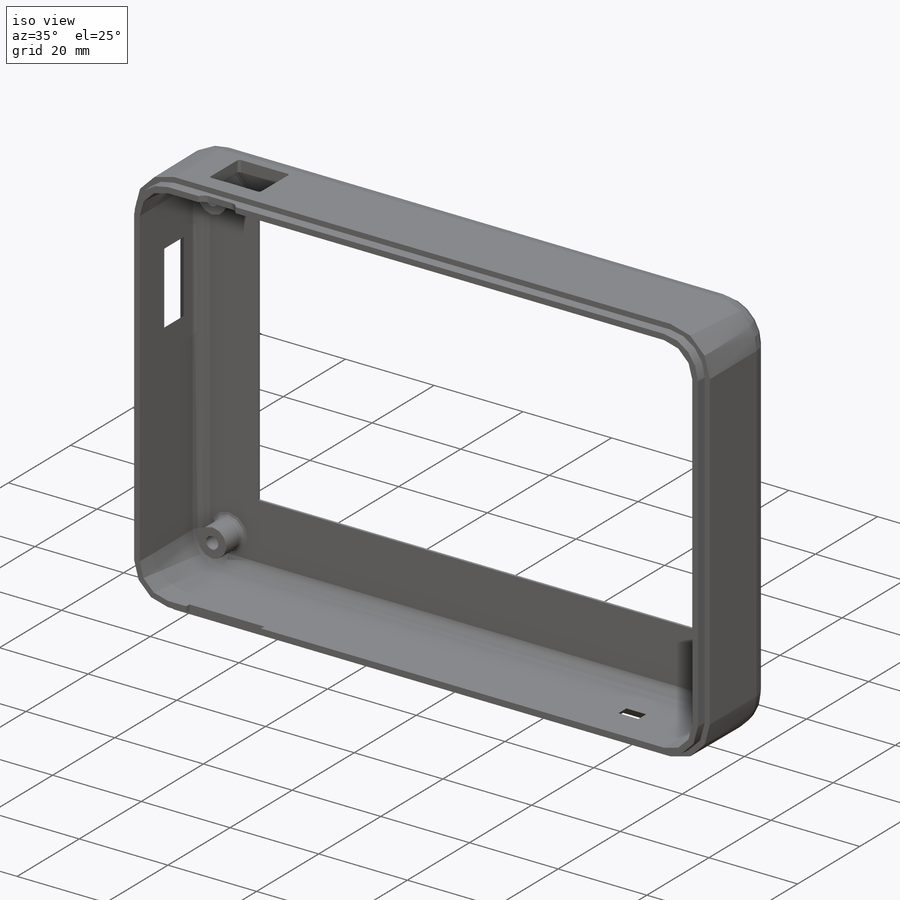
[diagram: iso view]
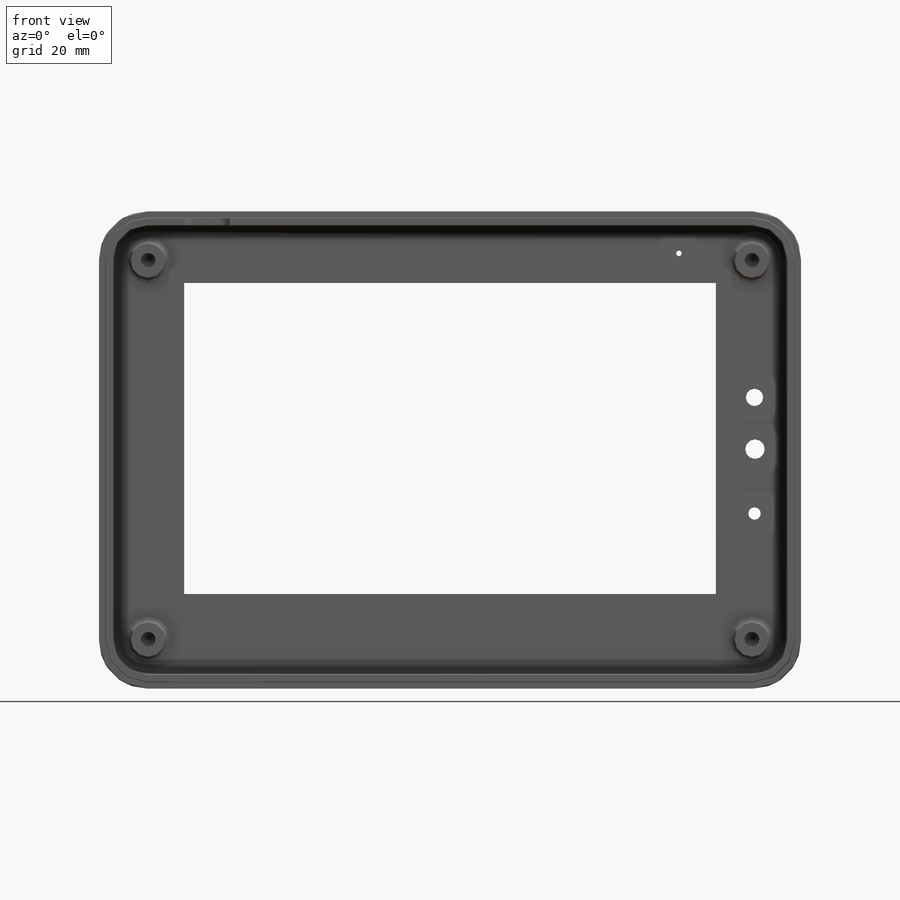
[diagram: front view]
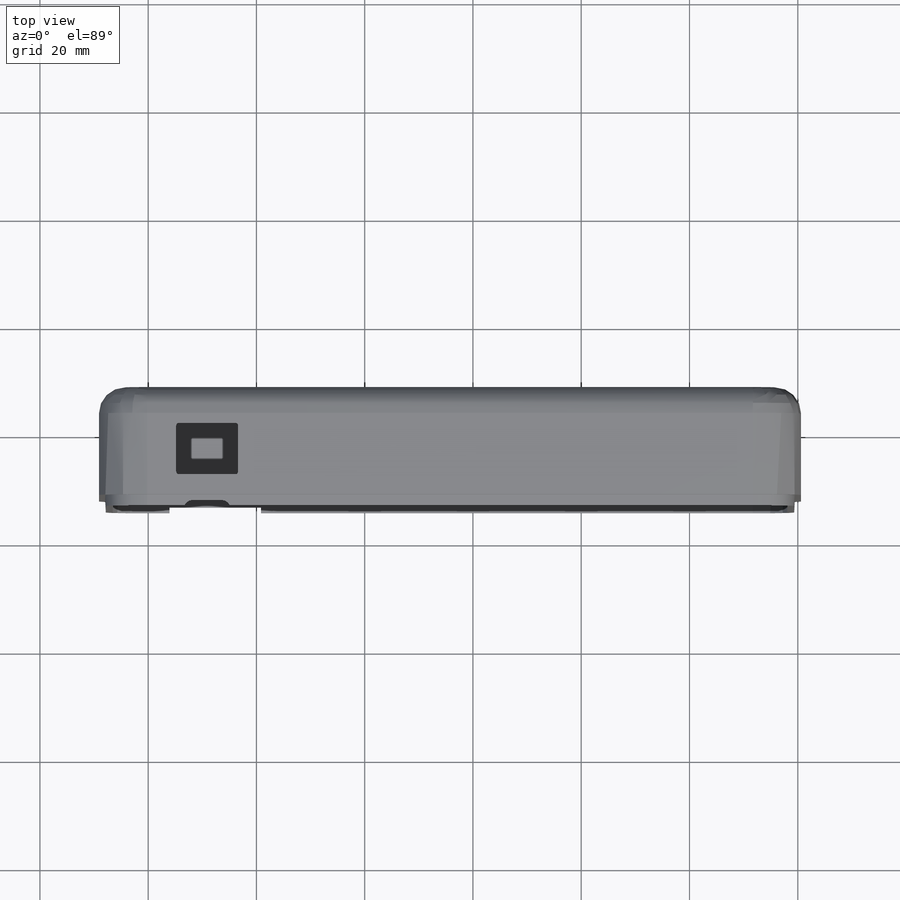
[diagram: top view]
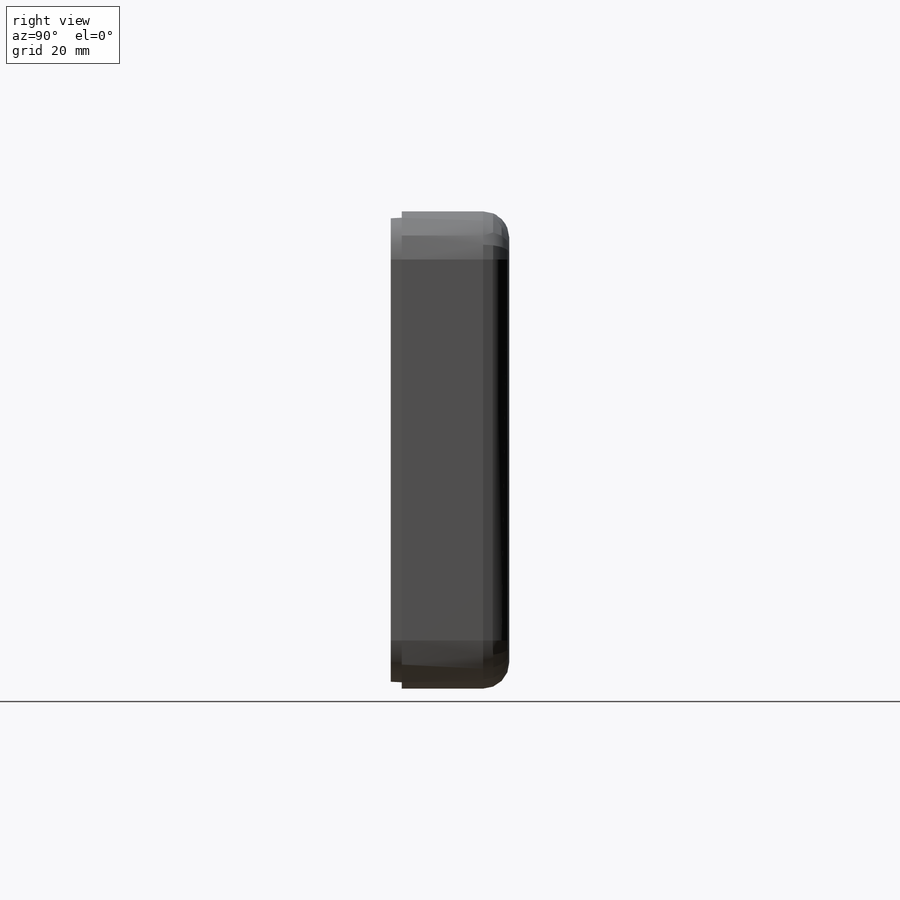
[diagram: right view]
SOLIDWORKS PART (.sldprt)
format: sldprt  version: not decoded by parser v0  size: 4,057,600 bytes
history: native  units: mm
features: sketch x35, extrude x21, fillet x11, cut_extrude x10, chamfer x4, pattern_linear x2, plane x2, hole x2, material x1 + 2 further entries (+14 scaffold rows collapsed; 1 parser-record rows omitted)
feature tree (105):
  scaffold x14  (default folders/planes/origin — collapsed)
  material  "Material <not specified>"
  "Axis Y"
  "Axis Z"
  parser-record x1  (decoder bookkeeping rows leaked as tree rows — omitted from the tree; the rows remain in map.json)
  sketch  "Sketch1"  dims[D1=3.048mm D2=2.54mm]
  extrude  "Boss-Extrude1"  Depth=1.5875mm
  pattern_linear  "LPattern1"  Count1=2 Count2=1 Spacing1=12.4364mm Spacing2=2.54mm
  sketch  "Sketch2"
  extrude  "Boss-Extrude2"  Depth=5.08mm
  sketch  "Sketch3"  dims[D1=3.5mm D2=2.75mm D3=3.5mm D4=7.0mm]
  cut_extrude  "Cut-Extrude1"  Depth=0.508mm
  sketch  "Sketch4"
  extrude  "Boss-Extrude3"  Depth=1.81mm
  sketch  "Sketch5"
  extrude  "Boss-Extrude4"  Depth=3mm
  sketch  "Sketch6"
  extrude  "Boss-Extrude5"  Depth=0.8mm
  sketch  "Sketch7"
  extrude  "Boss-Extrude6"  Depth=1mm
  sketch  "Sketch8"  dims[D1=0.0mm]
  extrude  "Boss-Extrude7"  Depth=4.5mm
  sketch  "Sketch9"
  extrude  "Boss-Extrude8"  Depth=4.69mm
  sketch  "Sketch10"  dims[D1=4.32mm D2=1.54mm D3=0.32mm D4=1.5mm]
  extrude  "Boss-Extrude9"  Depth=2.2mm
  sketch  "Sketch11"
  extrude  "Boss-Extrude10"  [1 undecoded]
  plane  "Plane1"  Offset=0.254mm
  sketch  "Sketch12"  dims[D1=2.54mm D2=2.54mm D3=2.54mm D4=2.54mm D5=2.54mm]
  extrude  "Boss-Extrude11"  [1 undecoded]
  sketch  "Sketch13"  dims[D1=0.0mm]
  extrude  "Boss-Extrude12"  Depth=2.54mm
  sketch  "Sketch14"  dims[D1=6.35mm]
  extrude  "Boss-Extrude13"  [1 undecoded]
  hole  "7/64 (0.10938) Diameter Hole1"  Diameter=2.778252mm Depth=6.35mm
  sketch  "Sketch16"
  sketch  "Sketch15"  dims[hole-wizard template sketch: 46 standard entries collapsed; hole parameters kept: c15.Hole Dia.=~2.778252mm c15.Hole Depth=6.35mm c15.D3=~14.816244mm c15.Drill Angle=118.0deg]
  sketch  "Sketch17"  dims[D1=0.254mm]
  cut_extrude  "Cut-Extrude2"  [1 undecoded]
  sketch  "Sketch18"  dims[D1=1.016mm]
  extrude  "Boss-Extrude14"  Depth=0.508mm
  sketch  "Sketch19"  dims[D1=1.016mm]
  extrude  "Boss-Extrude15"  Depth=0.508mm
  sketch  "Sketch20"  dims[D1=1.016mm]
  extrude  "Boss-Extrude16"  Depth=0.508mm
  sketch  "Sketch21"  dims[D1=1.016mm]
  cut_extrude  "Cut-Extrude3"  [1 undecoded]
  sketch  "Sketch22"  dims[D1=1.016mm]
  cut_extrude  "Cut-Extrude4"  [1 undecoded]
  fillet  "Fillet1"  Radius=1.016mm
  fillet  "Fillet2"  Radius=2.286mm
  fillet  "Fillet3"  Radius=4.826mm
  chamfer  "Chamfer1"  Distance=2.032mm Angle=45deg
  fillet  "Fillet4"  Radius=2.032mm
  chamfer  "Chamfer2"  Distance=2.032mm Angle=45deg
  sketch  "Sketch23"  dims[D1=0.0mm D2=2.54mm D3=2.54mm]
  cut_extrude  "Cut-Extrude8"  [1 undecoded]
  chamfer  "Chamfer3"  Distance=2.54mm Angle=45deg
  sketch  "Sketch25"  dims[D1=0.508mm]
  cut_extrude  "Cut-Extrude9"  [1 undecoded]
  chamfer  "Chamfer4"  Distance=2.54mm Angle=45deg
  sketch  "Sketch26"  dims[D1=0.0mm]
  extrude  "Boss-Extrude17"  Depth=14.2875mm
  sketch  "Sketch27"  dims[D1=0.0mm]
  extrude  "Boss-Extrude18"  Depth=2.54mm
  plane  "Plane2"  Offset=2.54mm GrooveHeight=2.032mm GrooveWidth=1.27mm GrooveDraftAngle=3deg Clearance=0.254mm Gap=0mm upGap=2.032mm LipHeight=2.032mm LipWidth=1.27mm LipDraftAngle=3deg
  fillet  "Fillet5"  Radius=2.286mm
  fillet  "Fillet6"  Radius=4.826mm
  sketch  "Sketch28"  dims[D1=63.5mm]
  cut_extrude  "Cut-Extrude10"  [1 undecoded]
  pattern_linear  "LPattern2"  Count1=2 Count2=1 Spacing1=12.4364mm Spacing2=2.54mm
  fillet  "Fillet7"  Radius=0.508mm
  sketch  "Sketch31"
  cut_extrude  "Cut-Extrude11"  Depth=2.54mm
  sketch  "Sketch32"  dims[D1=14.2875mm]
  extrude  "Boss-Extrude19"  [1 undecoded]
  fillet  "Fillet8"  Radius=1.016mm
  sketch  "Sketch33"  dims[D1=1.016mm D2=1.524mm D3=1.524mm]
  cut_extrude  "Cut-Extrude12"  [1 undecoded]
  sketch  "Sketch34"  dims[D1=6.35mm]
  extrude  "Boss-Extrude20"  [1 undecoded]
  fillet  "Fillet9"  Radius=2.54mm
  hole  "7/64 (0.10938) Diameter Hole2"  Diameter=2.778252mm Depth=6.35mm
  sketch  "Sketch36"
  sketch  "Sketch35"  dims[hole-wizard template sketch: 46 standard entries collapsed; hole parameters kept: c15.Hole Dia.=~2.778252mm c15.Hole Depth=6.35mm c15.D3=~14.816244mm c15.Drill Angle=118.0deg]
  fillet  "Fillet10"  Radius=1.016mm
  sketch  "Sketch37"  dims[c1.D1=~10.598294mm c1.D2=~15.14043mm c2.D1=11.43mm c2.D2=9.525mm]
  cut_extrude  "Cut-Extrude13"  [1 undecoded]
  fillet  "Fillet11"  Radius=0.508mm
  sketch  "Sketch38"  dims[D1=0.0mm]
  extrude  "Boss-Extrude22"  Depth=1.016mm
decode coverage: 62 of 85 modeling features carry decoded parameters; 2 rows unclassified (native names shown)
note: ~ marks probable driven/reference dimensions
note: 13 parameter values undecoded
summary: no parameter record found for 13 features
note: suppression state not decoded; provenance and decode notes live in map.json
